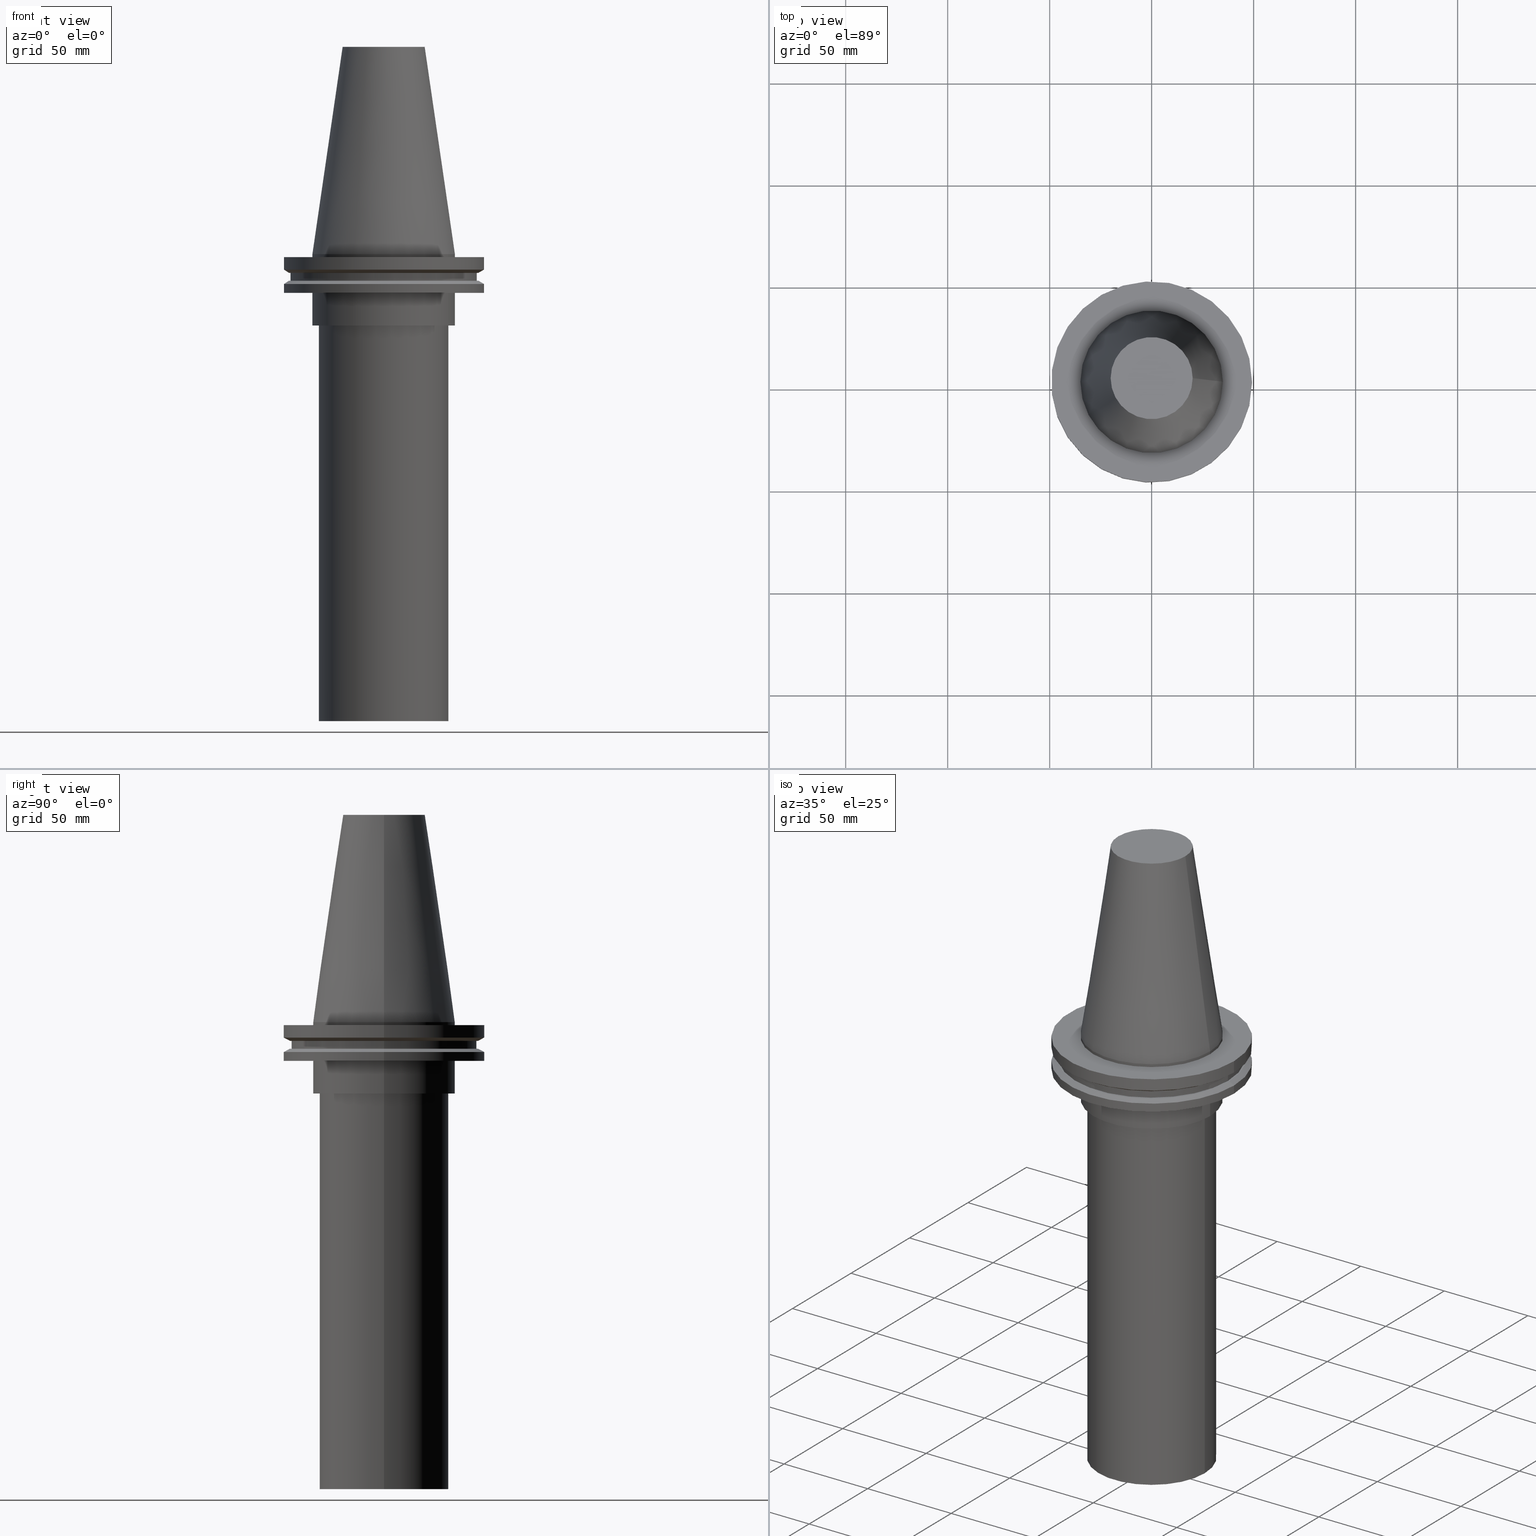
[diagram: canonical four-view strip — front | top / right | iso, engineering-drawing reading convention]
A machine part, canonical four-view strip (front | top / right | iso — engineering-drawing reading convention). The complete STEP part file that produces these views, byte-faithful:
ISO-10303-21;
HEADER;
FILE_DESCRIPTION (( 'STEP AP203' ),
    '1' );
FILE_NAME ('11.368.666.stp',
    '2022-03-09T15:22:44',
    ( '' ),
    ( '' ),
    'SwSTEP 2.0',
    'SolidWorks 2021',
    '' );
FILE_SCHEMA (( 'CONFIG_CONTROL_DESIGN' ));
ENDSEC;

DATA;
#1 = DIRECTION ( 'NONE',  ( 1.000000000000000000, 0.000000000000000000, 0.000000000000000000 ) ) ;
#2 = DIRECTION ( 'NONE',  ( 1.000000000000000000, 0.000000000000000000, 0.000000000000000000 ) ) ;
#3 = APPROVAL ( #111, 'UNSPECIFIED' ) ;
#4 = EDGE_LOOP ( 'NONE', ( #352 ) ) ;
#5 = CARTESIAN_POINT ( 'NONE',  ( 49.21499999999998920, 0.000000000000000000, -19.04999999999999716 ) ) ;
#6 = PRODUCT_DEFINITION_FORMATION_WITH_SPECIFIED_SOURCE ( 'ANY', '', #358, .NOT_KNOWN. ) ;
#7 = FACE_OUTER_BOUND ( 'NONE', #8, .T. ) ;
#8 = EDGE_LOOP ( 'NONE', ( #165 ) ) ;
#9 = DIRECTION ( 'NONE',  ( 1.000000000000000000, 0.000000000000000000, 0.000000000000000000 ) ) ;
#10 = PLANE ( 'NONE',  #322 ) ;
#11 = EDGE_CURVE ( 'NONE', #105, #105, #19, .T. ) ;
#12 = VERTEX_POINT ( 'NONE', #37 ) ;
#13 = FACE_OUTER_BOUND ( 'NONE', #227, .T. ) ;
#14 = CARTESIAN_POINT ( 'NONE',  ( 34.92499999999999005, 0.000000000000000000, 0.000000000000000000 ) ) ;
#15 = ORIENTED_EDGE ( 'NONE', *, *, #127, .T. ) ;
#16 = APPROVAL_DATE_TIME ( #299, #3 ) ;
#17 = DIRECTION ( 'NONE',  ( -0.000000000000000000, -0.000000000000000000, 1.000000000000000000 ) ) ;
#18 = PERSON_AND_ORGANIZATION_ROLE ( 'design_owner' ) ;
#19 = CIRCLE ( 'NONE', #369, 34.92499999999999716 ) ;
#20 = CALENDAR_DATE ( 2022, 9, 3 ) ;
#21 = CONICAL_SURFACE ( 'NONE', #244, 49.21499999999998920, 1.047197551196554333 ) ;
#22 = COORDINATED_UNIVERSAL_TIME_OFFSET ( 6, 0, .BEHIND. ) ;
#23 = ORIENTED_EDGE ( 'NONE', *, *, #32, .F. ) ;
#24 = AXIS2_PLACEMENT_3D ( 'NONE', #113, #234, #196 ) ;
#25 = DIRECTION ( 'NONE',  ( -0.000000000000000000, -0.000000000000000000, 1.000000000000000000 ) ) ;
#26 = FACE_OUTER_BOUND ( 'NONE', #384, .T. ) ;
#27 = AXIS2_PLACEMENT_3D ( 'NONE', #81, #291, #318 ) ;
#28 = FACE_OUTER_BOUND ( 'NONE', #228, .T. ) ;
#29 = FACE_OUTER_BOUND ( 'NONE', #278, .T. ) ;
#30 = AXIS2_PLACEMENT_3D ( 'NONE', #324, #233, #52 ) ;
#31 = ORIENTED_EDGE ( 'NONE', *, *, #123, .F. ) ;
#32 = EDGE_CURVE ( 'NONE', #223, #223, #97, .T. ) ;
#33 = CARTESIAN_POINT ( 'NONE',  ( 0.000000000000000000, 0.000000000000000000, 0.000000000000000000 ) ) ;
#34 = CYLINDRICAL_SURFACE ( 'NONE', #334, 34.92499999999999716 ) ;
#35 = ORIENTED_EDGE ( 'NONE', *, *, #104, .F. ) ;
#36 = CIRCLE ( 'NONE', #353, 46.43919780457007818 ) ;
#37 = CARTESIAN_POINT ( 'NONE',  ( 34.92499999999999005, 0.000000000000000000, -1.499999999999987566 ) ) ;
#38 = EDGE_LOOP ( 'NONE', ( #319 ) ) ;
#39 = DIRECTION ( 'NONE',  ( 0.000000000000000000, -0.000000000000000000, 1.000000000000000000 ) ) ;
#40 = ADVANCED_FACE ( 'NONE', ( #176, #290 ), #45, .F. ) ;
#41 = ORIENTED_EDGE ( 'NONE', *, *, #195, .F. ) ;
#42 = CARTESIAN_POINT ( 'NONE',  ( 45.64500000000000313, 0.000000000000000000, -9.204999999999991189 ) ) ;
#43 = EDGE_LOOP ( 'NONE', ( #161 ) ) ;
#44 = DIRECTION ( 'NONE',  ( -1.000000000000000000, 0.000000000000000000, 0.000000000000000000 ) ) ;
#45 = PLANE ( 'NONE',  #79 ) ;
#46 = APPROVAL_PERSON_ORGANIZATION ( #385, #210, #145 ) ;
#47 = DATE_AND_TIME ( #360, #284 ) ;
#48 = CARTESIAN_POINT ( 'NONE',  ( 0.000000000000000000, 0.000000000000000000, -19.04999999999999716 ) ) ;
#49 = CALENDAR_DATE ( 2022, 9, 3 ) ;
#50 = CARTESIAN_POINT ( 'NONE',  ( 31.75000000000000000, 0.000000000000000000, -35.00000000000000000 ) ) ;
#51 =( GEOMETRIC_REPRESENTATION_CONTEXT ( 3 ) GLOBAL_UNCERTAINTY_ASSIGNED_CONTEXT ( ( #348 ) ) GLOBAL_UNIT_ASSIGNED_CONTEXT ( ( #294, #357, #264 ) ) REPRESENTATION_CONTEXT ( 'NONE', 'WORKASPACE' ) );
#52 = DIRECTION ( 'NONE',  ( 1.000000000000000000, 0.000000000000000000, 0.000000000000000000 ) ) ;
#53 = ADVANCED_FACE ( 'NONE', ( #137 ), #10, .F. ) ;
#54 = AXIS2_PLACEMENT_3D ( 'NONE', #120, #393, #152 ) ;
#55 = PERSON_AND_ORGANIZATION ( #100, #154 ) ;
#56 = ORIENTED_EDGE ( 'NONE', *, *, #268, .F. ) ;
#57 = DIRECTION ( 'NONE',  ( 1.000000000000000000, 0.000000000000000000, 0.000000000000000000 ) ) ;
#58 = CIRCLE ( 'NONE', #226, 34.92499999999999005 ) ;
#59 = LOCAL_TIME ( 9, 22, 44.00000000000000000, #22 ) ;
#60 = CC_DESIGN_PERSON_AND_ORGANIZATION_ASSIGNMENT ( #90, #231, ( #201 ) ) ;
#61 = DIRECTION ( 'NONE',  ( -0.000000000000000000, -0.000000000000000000, 1.000000000000000000 ) ) ;
#62 = DIRECTION ( 'NONE',  ( 1.000000000000000000, 0.000000000000000000, 0.000000000000000000 ) ) ;
#63 = CARTESIAN_POINT ( 'NONE',  ( 0.000000000000000000, 0.000000000000000000, -229.0000000000000000 ) ) ;
#64 = ADVANCED_FACE ( 'NONE', ( #391 ), #106, .F. ) ;
#65 = EDGE_LOOP ( 'NONE', ( #217 ) ) ;
#66 = CIRCLE ( 'NONE', #308, 49.21499999999998920 ) ;
#67 = CARTESIAN_POINT ( 'NONE',  ( 0.000000000000000000, 0.000000000000000000, 0.000000000000000000 ) ) ;
#68 = APPROVAL_PERSON_ORGANIZATION ( #363, #327, #149 ) ;
#69 = EDGE_LOOP ( 'NONE', ( #122 ) ) ;
#70 = FACE_BOUND ( 'NONE', #76, .T. ) ;
#71 = CARTESIAN_POINT ( 'NONE',  ( 34.92499999999999716, 0.000000000000000000, -19.04999999999999716 ) ) ;
#72 = ORIENTED_EDGE ( 'NONE', *, *, #195, .T. ) ;
#73 = CIRCLE ( 'NONE', #255, 49.21499999999998920 ) ;
#74 = FACE_BOUND ( 'NONE', #317, .T. ) ;
#75 = PRODUCT_RELATED_PRODUCT_CATEGORY ( 'detail', '', ( #358 ) ) ;
#76 = EDGE_LOOP ( 'NONE', ( #331 ) ) ;
#77 = VERTEX_POINT ( 'NONE', #5 ) ;
#78 = AXIS2_PLACEMENT_3D ( 'NONE', #156, #282, #95 ) ;
#79 = AXIS2_PLACEMENT_3D ( 'NONE', #301, #163, #263 ) ;
#80 = CYLINDRICAL_SURFACE ( 'NONE', #24, 45.64500000000000313 ) ;
#81 = CARTESIAN_POINT ( 'NONE',  ( 0.000000000000000000, 34.92499999999999716, -35.00000000000000000 ) ) ;
#82 = CIRCLE ( 'NONE', #267, 49.21500000000000341 ) ;
#83 = DIRECTION ( 'NONE',  ( -0.000000000000000000, -0.000000000000000000, 1.000000000000000000 ) ) ;
#84 = CC_DESIGN_DATE_AND_TIME_ASSIGNMENT ( #47, #169, ( #201 ) ) ;
#85 = VERTEX_POINT ( 'NONE', #387 ) ;
#86 = EDGE_LOOP ( 'NONE', ( #245 ) ) ;
#87 = PERSON_AND_ORGANIZATION ( #100, #154 ) ;
#88 = ADVANCED_FACE ( 'NONE', ( #13, #386 ), #80, .T. ) ;
#89 = AXIS2_PLACEMENT_3D ( 'NONE', #382, #83, #323 ) ;
#90 = PERSON_AND_ORGANIZATION ( #100, #154 ) ;
#91 = ORIENTED_EDGE ( 'NONE', *, *, #216, .F. ) ;
#92 = CALENDAR_DATE ( 2022, 9, 3 ) ;
#93 = CARTESIAN_POINT ( 'NONE',  ( 0.000000000000000000, 31.75000000000000000, -229.0000000000000000 ) ) ;
#94 = ADVANCED_FACE ( 'NONE', ( #362, #134 ), #258, .T. ) ;
#95 = DIRECTION ( 'NONE',  ( 1.000000000000000000, 0.000000000000000000, 0.000000000000000000 ) ) ;
#96 = CARTESIAN_POINT ( 'NONE',  ( 0.000000000000000000, 0.000000000000000000, -9.204999999999991189 ) ) ;
#97 = CIRCLE ( 'NONE', #241, 34.92499999999999716 ) ;
#98 = CARTESIAN_POINT ( 'NONE',  ( 0.000000000000000000, 0.000000000000000000, 101.5999999999999943 ) ) ;
#99 = DIRECTION ( 'NONE',  ( 1.000000000000000000, 0.000000000000000000, 0.000000000000000000 ) ) ;
#100 = PERSON ( 'UNSPECIFIED', 'UNSPECIFIED', 'UNSPECIFIED', ('UNSPECIFIED'), ('UNSPECIFIED'), ('UNSPECIFIED') ) ;
#101 = FACE_BOUND ( 'NONE', #43, .T. ) ;
#102 = EDGE_LOOP ( 'NONE', ( #200 ) ) ;
#103 = VERTEX_POINT ( 'NONE', #109 ) ;
#104 = EDGE_CURVE ( 'NONE', #375, #375, #73, .T. ) ;
#105 = VERTEX_POINT ( 'NONE', #283 ) ;
#106 = PLANE ( 'NONE',  #112 ) ;
#107 = VERTEX_POINT ( 'NONE', #14 ) ;
#108 = EDGE_LOOP ( 'NONE', ( #206 ) ) ;
#109 = CARTESIAN_POINT ( 'NONE',  ( 45.64500000000000313, 0.000000000000000000, -13.05499999999999794 ) ) ;
#110 = EDGE_LOOP ( 'NONE', ( #168 ) ) ;
#111 = APPROVAL_STATUS ( 'not_yet_approved' ) ;
#112 = AXIS2_PLACEMENT_3D ( 'NONE', #93, #207, #130 ) ;
#113 = CARTESIAN_POINT ( 'NONE',  ( 0.000000000000000000, 0.000000000000000000, 101.5999999999999943 ) ) ;
#114 = CIRCLE ( 'NONE', #304, 49.21499999999999631 ) ;
#115 = CONICAL_SURFACE ( 'NONE', #144, 46.43919780457007818, 1.047197551196575205 ) ;
#116 = COORDINATED_UNIVERSAL_TIME_OFFSET ( 6, 0, .BEHIND. ) ;
#117 = CIRCLE ( 'NONE', #166, 20.10819343178871321 ) ;
#118 = EDGE_LOOP ( 'NONE', ( #31 ) ) ;
#119 = DIRECTION ( 'NONE',  ( 1.000000000000000000, 0.000000000000000000, 0.000000000000000000 ) ) ;
#120 = CARTESIAN_POINT ( 'NONE',  ( 0.000000000000000000, 0.000000000000000000, -13.05499999999999794 ) ) ;
#121 = FACE_BOUND ( 'NONE', #187, .T. ) ;
#122 = ORIENTED_EDGE ( 'NONE', *, *, #132, .T. ) ;
#123 = EDGE_CURVE ( 'NONE', #107, #107, #248, .T. ) ;
#124 = DIRECTION ( 'NONE',  ( 1.000000000000000000, 0.000000000000000000, 0.000000000000000000 ) ) ;
#125 = DIRECTION ( 'NONE',  ( 1.000000000000000000, 0.000000000000000000, 0.000000000000000000 ) ) ;
#126 = VERTEX_POINT ( 'NONE', #219 ) ;
#127 = EDGE_CURVE ( 'NONE', #103, #103, #345, .T. ) ;
#128 = CARTESIAN_POINT ( 'NONE',  ( 0.000000000000000000, 0.000000000000000000, -7.602389855251287187 ) ) ;
#129 = DIRECTION ( 'NONE',  ( -0.000000000000000000, -0.000000000000000000, 1.000000000000000000 ) ) ;
#130 = DIRECTION ( 'NONE',  ( 1.000000000000000000, 0.000000000000000000, 0.000000000000000000 ) ) ;
#131 = AXIS2_PLACEMENT_3D ( 'NONE', #238, #155, #392 ) ;
#132 = EDGE_CURVE ( 'NONE', #77, #77, #66, .T. ) ;
#133 = VERTEX_POINT ( 'NONE', #257 ) ;
#134 = FACE_OUTER_BOUND ( 'NONE', #213, .T. ) ;
#135 = PLANE ( 'NONE',  #343 ) ;
#136 = ORIENTED_EDGE ( 'NONE', *, *, #286, .F. ) ;
#137 = FACE_OUTER_BOUND ( 'NONE', #86, .T. ) ;
#138 = APPLICATION_PROTOCOL_DEFINITION ( 'international standard', 'config_control_design', 1994, #247 ) ;
#139 = CC_DESIGN_PERSON_AND_ORGANIZATION_ASSIGNMENT ( #87, #143, ( #6 ) ) ;
#140 = MECHANICAL_CONTEXT ( 'NONE', #232, 'mechanical' ) ;
#141 = AXIS2_PLACEMENT_3D ( 'NONE', #98, #312, #99 ) ;
#142 = CLOSED_SHELL ( 'NONE', ( #349, #53, #373, #388, #356, #146, #311, #297, #88, #243, #279, #237, #40, #94, #172, #64 ) ) ;
#143 = PERSON_AND_ORGANIZATION_ROLE ( 'creator' ) ;
#144 = AXIS2_PLACEMENT_3D ( 'NONE', #332, #61, #62 ) ;
#145 = APPROVAL_ROLE ( '' ) ;
#146 = ADVANCED_FACE ( 'NONE', ( #26, #277 ), #367, .T. ) ;
#147 = AXIS2_PLACEMENT_3D ( 'NONE', #63, #303, #124 ) ;
#148 = EDGE_LOOP ( 'NONE', ( #379 ) ) ;
#149 = APPROVAL_ROLE ( '' ) ;
#150 = DIRECTION ( 'NONE',  ( 1.000000000000000000, 0.000000000000000000, 0.000000000000000000 ) ) ;
#151 = DIRECTION ( 'NONE',  ( -0.000000000000000000, -0.000000000000000000, 1.000000000000000000 ) ) ;
#152 = DIRECTION ( 'NONE',  ( 1.000000000000000000, 0.000000000000000000, 0.000000000000000000 ) ) ;
#153 = EDGE_CURVE ( 'NONE', #126, #126, #117, .T. ) ;
#154 = ORGANIZATION ( 'UNSPECIFIED', 'UNSPECIFIED', '' ) ;
#155 = DIRECTION ( 'NONE',  ( -0.000000000000000000, -0.000000000000000000, 1.000000000000000000 ) ) ;
#156 = CARTESIAN_POINT ( 'NONE',  ( 0.000000000000000000, 46.43919780457007818, -9.204999999999998295 ) ) ;
#157 = DIRECTION ( 'NONE',  ( 0.000000000000000000, 0.000000000000000000, -1.000000000000000000 ) ) ;
#158 = EDGE_CURVE ( 'NONE', #188, #188, #215, .T. ) ;
#159 = AXIS2_PLACEMENT_3D ( 'NONE', #33, #25, #57 ) ;
#160 = VERTEX_POINT ( 'NONE', #42 ) ;
#161 = ORIENTED_EDGE ( 'NONE', *, *, #216, .T. ) ;
#162 = DESIGN_CONTEXT ( 'detailed design', #247, 'design' ) ;
#163 = DIRECTION ( 'NONE',  ( 0.000000000000000000, 0.000000000000000000, -1.000000000000000000 ) ) ;
#164 = FACE_OUTER_BOUND ( 'NONE', #110, .T. ) ;
#165 = ORIENTED_EDGE ( 'NONE', *, *, #11, .T. ) ;
#166 = AXIS2_PLACEMENT_3D ( 'NONE', #208, #336, #2 ) ;
#167 = PLANE ( 'NONE',  #27 ) ;
#168 = ORIENTED_EDGE ( 'NONE', *, *, #132, .F. ) ;
#169 = DATE_TIME_ROLE ( 'creation_date' ) ;
#170 = DIRECTION ( 'NONE',  ( 1.000000000000000000, 0.000000000000000000, 0.000000000000000000 ) ) ;
#171 = DATE_TIME_ROLE ( 'classification_date' ) ;
#172 = ADVANCED_FACE ( 'NONE', ( #218, #211 ), #178, .T. ) ;
#173 = VERTEX_POINT ( 'NONE', #50 ) ;
#174 = APPROVAL_ROLE ( '' ) ;
#175 = EDGE_CURVE ( 'NONE', #315, #315, #36, .T. ) ;
#176 = FACE_BOUND ( 'NONE', #354, .T. ) ;
#177 = AXIS2_PLACEMENT_3D ( 'NONE', #67, #371, #150 ) ;
#178 = CYLINDRICAL_SURFACE ( 'NONE', #177, 31.75000000000000000 ) ;
#179 = DIRECTION ( 'NONE',  ( -0.000000000000000000, -0.000000000000000000, 1.000000000000000000 ) ) ;
#180 = DIRECTION ( 'NONE',  ( -0.000000000000000000, -0.000000000000000000, 1.000000000000000000 ) ) ;
#181 = DIRECTION ( 'NONE',  ( 1.000000000000000000, 0.000000000000000000, 0.000000000000000000 ) ) ;
#182 = APPROVAL_STATUS ( 'not_yet_approved' ) ;
#183 = FACE_OUTER_BOUND ( 'NONE', #38, .T. ) ;
#184 = ORIENTED_EDGE ( 'NONE', *, *, #268, .T. ) ;
#185 = CC_DESIGN_DATE_AND_TIME_ASSIGNMENT ( #269, #171, ( #271 ) ) ;
#186 = FACE_BOUND ( 'NONE', #287, .T. ) ;
#187 = EDGE_LOOP ( 'NONE', ( #346 ) ) ;
#188 = VERTEX_POINT ( 'NONE', #342 ) ;
#189 = AXIS2_PLACEMENT_3D ( 'NONE', #240, #179, #307 ) ;
#190 = ORIENTED_EDGE ( 'NONE', *, *, #153, .F. ) ;
#191 = DIRECTION ( 'NONE',  ( -1.000000000000000000, 0.000000000000000000, -0.000000000000000000 ) ) ;
#192 = EDGE_LOOP ( 'NONE', ( #190 ) ) ;
#193 = CIRCLE ( 'NONE', #281, 45.64500000000000313 ) ;
#194 = CARTESIAN_POINT ( 'NONE',  ( 0.000000000000000000, 0.000000000000000000, 0.000000000000000000 ) ) ;
#195 = EDGE_CURVE ( 'NONE', #12, #12, #58, .T. ) ;
#196 = DIRECTION ( 'NONE',  ( 1.000000000000000000, 0.000000000000000000, 0.000000000000000000 ) ) ;
#197 = FACE_OUTER_BOUND ( 'NONE', #102, .T. ) ;
#198 = EDGE_LOOP ( 'NONE', ( #252 ) ) ;
#199 = DATE_AND_TIME ( #203, #380 ) ;
#200 = ORIENTED_EDGE ( 'NONE', *, *, #11, .F. ) ;
#201 = PRODUCT_DEFINITION ( 'UNKNOWN', '', #6, #162 ) ;
#202 = PERSON_AND_ORGANIZATION_ROLE ( 'design_supplier' ) ;
#203 = CALENDAR_DATE ( 2022, 9, 3 ) ;
#204 = PRODUCT_DEFINITION_SHAPE ( 'NONE', 'NONE',  #201 ) ;
#205 = PERSON_AND_ORGANIZATION ( #100, #154 ) ;
#206 = ORIENTED_EDGE ( 'NONE', *, *, #320, .F. ) ;
#207 = DIRECTION ( 'NONE',  ( 0.000000000000000000, -0.000000000000000000, 1.000000000000000000 ) ) ;
#208 = CARTESIAN_POINT ( 'NONE',  ( 0.000000000000000000, 0.000000000000000000, 101.5999999999999801 ) ) ;
#209 = COORDINATED_UNIVERSAL_TIME_OFFSET ( 6, 0, .BEHIND. ) ;
#210 = APPROVAL ( #355, 'UNSPECIFIED' ) ;
#211 = FACE_OUTER_BOUND ( 'NONE', #198, .T. ) ;
#212 = FACE_BOUND ( 'NONE', #261, .T. ) ;
#213 = EDGE_LOOP ( 'NONE', ( #72 ) ) ;
#214 = PLANE ( 'NONE',  #78 ) ;
#215 = CIRCLE ( 'NONE', #147, 31.75000000000000000 ) ;
#216 = EDGE_CURVE ( 'NONE', #160, #160, #193, .T. ) ;
#217 = ORIENTED_EDGE ( 'NONE', *, *, #394, .T. ) ;
#218 = FACE_OUTER_BOUND ( 'NONE', #337, .T. ) ;
#219 = CARTESIAN_POINT ( 'NONE',  ( 20.10819343178871321, 0.000000000000000000, 101.5999999999999801 ) ) ;
#220 = ORIENTED_EDGE ( 'NONE', *, *, #286, .T. ) ;
#221 = CONICAL_SURFACE ( 'NONE', #326, 34.92499999999999005, 0.1448138465474119452 ) ;
#222 = DIRECTION ( 'NONE',  ( -0.000000000000000000, -0.000000000000000000, 1.000000000000000000 ) ) ;
#223 = VERTEX_POINT ( 'NONE', #71 ) ;
#224 = ORIENTED_EDGE ( 'NONE', *, *, #123, .T. ) ;
#225 = FACE_BOUND ( 'NONE', #192, .T. ) ;
#226 = AXIS2_PLACEMENT_3D ( 'NONE', #236, #242, #125 ) ;
#227 = EDGE_LOOP ( 'NONE', ( #91 ) ) ;
#228 = EDGE_LOOP ( 'NONE', ( #310 ) ) ;
#229 = COORDINATED_UNIVERSAL_TIME_OFFSET ( 6, 0, .BEHIND. ) ;
#230 = CARTESIAN_POINT ( 'NONE',  ( 49.21500000000000341, 0.000000000000000000, -7.602389855251287187 ) ) ;
#231 = PERSON_AND_ORGANIZATION_ROLE ( 'creator' ) ;
#232 = APPLICATION_CONTEXT ( 'configuration controlled 3d designs of mechanical parts and assemblies' ) ;
#233 = DIRECTION ( 'NONE',  ( 0.000000000000000000, 0.000000000000000000, 1.000000000000000000 ) ) ;
#234 = DIRECTION ( 'NONE',  ( -0.000000000000000000, -0.000000000000000000, 1.000000000000000000 ) ) ;
#235 = DIRECTION ( 'NONE',  ( 1.000000000000000000, 0.000000000000000000, 0.000000000000000000 ) ) ;
#236 = CARTESIAN_POINT ( 'NONE',  ( 0.000000000000000000, 0.000000000000000000, -1.499999999999987566 ) ) ;
#237 = ADVANCED_FACE ( 'NONE', ( #183, #28 ), #365, .T. ) ;
#238 = CARTESIAN_POINT ( 'NONE',  ( 0.000000000000000000, 0.000000000000000000, -13.05499999999999794 ) ) ;
#239 = LOCAL_TIME ( 9, 22, 44.00000000000000000, #229 ) ;
#240 = CARTESIAN_POINT ( 'NONE',  ( 0.000000000000000000, 0.000000000000000000, -35.00000000000000000 ) ) ;
#241 = AXIS2_PLACEMENT_3D ( 'NONE', #48, #17, #170 ) ;
#242 = DIRECTION ( 'NONE',  ( -0.000000000000000000, -0.000000000000000000, 1.000000000000000000 ) ) ;
#243 = ADVANCED_FACE ( 'NONE', ( #275, #101 ), #214, .F. ) ;
#244 = AXIS2_PLACEMENT_3D ( 'NONE', #383, #347, #44 ) ;
#245 = ORIENTED_EDGE ( 'NONE', *, *, #153, .T. ) ;
#246 = FACE_OUTER_BOUND ( 'NONE', #108, .T. ) ;
#247 = APPLICATION_CONTEXT ( 'configuration controlled 3d designs of mechanical parts and assemblies' ) ;
#248 = CIRCLE ( 'NONE', #159, 34.92499999999999005 ) ;
#249 = CARTESIAN_POINT ( 'NONE',  ( 0.000000000000000000, 49.21499999999998920, -19.04999999999999716 ) ) ;
#250 = EDGE_LOOP ( 'NONE', ( #374 ) ) ;
#251 = DIRECTION ( 'NONE',  ( 1.000000000000000000, 0.000000000000000000, 0.000000000000000000 ) ) ;
#252 = ORIENTED_EDGE ( 'NONE', *, *, #158, .T. ) ;
#253 = DIRECTION ( 'NONE',  ( 1.000000000000000000, 0.000000000000000000, 0.000000000000000000 ) ) ;
#254 = DIRECTION ( 'NONE',  ( -1.000000000000000000, 0.000000000000000000, -0.000000000000000000 ) ) ;
#255 = AXIS2_PLACEMENT_3D ( 'NONE', #370, #309, #273 ) ;
#256 = CC_DESIGN_APPROVAL ( #3, ( #6 ) ) ;
#257 = CARTESIAN_POINT ( 'NONE',  ( 46.43919780457007818, 0.000000000000000000, -13.05499999999999794 ) ) ;
#258 = CYLINDRICAL_SURFACE ( 'NONE', #89, 34.92499999999999005 ) ;
#259 = FACE_OUTER_BOUND ( 'NONE', #330, .T. ) ;
#260 = CC_DESIGN_PERSON_AND_ORGANIZATION_ASSIGNMENT ( #205, #202, ( #6 ) ) ;
#261 = EDGE_LOOP ( 'NONE', ( #340 ) ) ;
#262 = APPLICATION_PROTOCOL_DEFINITION ( 'international standard', 'config_control_design', 1994, #232 ) ;
#263 = DIRECTION ( 'NONE',  ( -1.000000000000000000, 0.000000000000000000, -0.000000000000000000 ) ) ;
#264 =( NAMED_UNIT ( * ) SI_UNIT ( $, .STERADIAN. ) SOLID_ANGLE_UNIT ( ) );
#265 = CC_DESIGN_SECURITY_CLASSIFICATION ( #271, ( #6 ) ) ;
#266 = MANIFOLD_SOLID_BREP ( 'CKB', #142 ) ;
#267 = AXIS2_PLACEMENT_3D ( 'NONE', #128, #129, #381 ) ;
#268 = EDGE_CURVE ( 'NONE', #133, #133, #298, .T. ) ;
#269 = DATE_AND_TIME ( #49, #59 ) ;
#270 = CARTESIAN_POINT ( 'NONE',  ( 0.000000000000000000, 20.10819343178871321, 101.5999999999999943 ) ) ;
#271 = SECURITY_CLASSIFICATION ( '', '', #329 ) ;
#272 = DATE_AND_TIME ( #92, #368 ) ;
#273 = DIRECTION ( 'NONE',  ( 1.000000000000000000, 0.000000000000000000, 0.000000000000000000 ) ) ;
#274 = CC_DESIGN_PERSON_AND_ORGANIZATION_ASSIGNMENT ( #295, #18, ( #358 ) ) ;
#275 = FACE_OUTER_BOUND ( 'NONE', #250, .T. ) ;
#276 = AXIS2_PLACEMENT_3D ( 'NONE', #314, #341, #191 ) ;
#277 = FACE_OUTER_BOUND ( 'NONE', #69, .T. ) ;
#278 = EDGE_LOOP ( 'NONE', ( #184 ) ) ;
#279 = ADVANCED_FACE ( 'NONE', ( #246, #121 ), #115, .T. ) ;
#280 = DIRECTION ( 'NONE',  ( -0.000000000000000000, -0.000000000000000000, 1.000000000000000000 ) ) ;
#281 = AXIS2_PLACEMENT_3D ( 'NONE', #96, #335, #181 ) ;
#282 = DIRECTION ( 'NONE',  ( 0.000000000000000000, -0.000000000000000000, 1.000000000000000000 ) ) ;
#283 = CARTESIAN_POINT ( 'NONE',  ( 34.92499999999999716, 0.000000000000000000, -35.00000000000000000 ) ) ;
#284 = LOCAL_TIME ( 9, 22, 44.00000000000000000, #116 ) ;
#285 = CARTESIAN_POINT ( 'NONE',  ( 49.21499999999998920, 0.000000000000000000, -14.65761014474876944 ) ) ;
#286 = EDGE_CURVE ( 'NONE', #173, #173, #389, .T. ) ;
#287 = EDGE_LOOP ( 'NONE', ( #220 ) ) ;
#288 = DIRECTION ( 'NONE',  ( -0.000000000000000000, -0.000000000000000000, 1.000000000000000000 ) ) ;
#289 = CARTESIAN_POINT ( 'NONE',  ( 46.43919780457007818, 0.000000000000000000, -9.204999999999991189 ) ) ;
#290 = FACE_OUTER_BOUND ( 'NONE', #65, .T. ) ;
#291 = DIRECTION ( 'NONE',  ( 0.000000000000000000, -0.000000000000000000, 1.000000000000000000 ) ) ;
#292 = EDGE_LOOP ( 'NONE', ( #15 ) ) ;
#293 = CARTESIAN_POINT ( 'NONE',  ( 0.000000000000000000, 0.000000000000000000, -35.00000000000000000 ) ) ;
#294 =( LENGTH_UNIT ( ) NAMED_UNIT ( * ) SI_UNIT ( .MILLI., .METRE. ) );
#295 = PERSON_AND_ORGANIZATION ( #100, #154 ) ;
#296 = APPROVAL_PERSON_ORGANIZATION ( #359, #3, #174 ) ;
#297 = ADVANCED_FACE ( 'NONE', ( #212, #29 ), #321, .F. ) ;
#298 = CIRCLE ( 'NONE', #54, 46.43919780457007818 ) ;
#299 = DATE_AND_TIME ( #20, #239 ) ;
#300 = APPROVAL_DATE_TIME ( #199, #210 ) ;
#301 = CARTESIAN_POINT ( 'NONE',  ( 0.000000000000000000, 49.21499999999999631, -1.499999999999992895 ) ) ;
#302 = CC_DESIGN_PERSON_AND_ORGANIZATION_ASSIGNMENT ( #55, #325, ( #271 ) ) ;
#303 = DIRECTION ( 'NONE',  ( -0.000000000000000000, -0.000000000000000000, 1.000000000000000000 ) ) ;
#304 = AXIS2_PLACEMENT_3D ( 'NONE', #377, #222, #253 ) ;
#305 = SHAPE_DEFINITION_REPRESENTATION ( #204, #376 ) ;
#306 = CARTESIAN_POINT ( 'NONE',  ( 0.000000000000000000, 0.000000000000000000, -19.04999999999999716 ) ) ;
#307 = DIRECTION ( 'NONE',  ( 1.000000000000000000, 0.000000000000000000, 0.000000000000000000 ) ) ;
#308 = AXIS2_PLACEMENT_3D ( 'NONE', #306, #180, #1 ) ;
#309 = DIRECTION ( 'NONE',  ( -0.000000000000000000, -0.000000000000000000, 1.000000000000000000 ) ) ;
#310 = ORIENTED_EDGE ( 'NONE', *, *, #320, .T. ) ;
#311 = ADVANCED_FACE ( 'NONE', ( #74, #316 ), #21, .T. ) ;
#312 = DIRECTION ( 'NONE',  ( -0.000000000000000000, -0.000000000000000000, 1.000000000000000000 ) ) ;
#313 = EDGE_LOOP ( 'NONE', ( #224 ) ) ;
#314 = CARTESIAN_POINT ( 'NONE',  ( 0.000000000000000000, 45.64500000000000313, -13.05499999999999794 ) ) ;
#315 = VERTEX_POINT ( 'NONE', #289 ) ;
#316 = FACE_OUTER_BOUND ( 'NONE', #4, .T. ) ;
#317 = EDGE_LOOP ( 'NONE', ( #56 ) ) ;
#318 = DIRECTION ( 'NONE',  ( 1.000000000000000000, 0.000000000000000000, 0.000000000000000000 ) ) ;
#319 = ORIENTED_EDGE ( 'NONE', *, *, #394, .F. ) ;
#320 = EDGE_CURVE ( 'NONE', #390, #390, #82, .T. ) ;
#321 = PLANE ( 'NONE',  #276 ) ;
#322 = AXIS2_PLACEMENT_3D ( 'NONE', #270, #364, #254 ) ;
#323 = DIRECTION ( 'NONE',  ( 1.000000000000000000, 0.000000000000000000, 0.000000000000000000 ) ) ;
#324 = CARTESIAN_POINT ( 'NONE',  ( 0.000000000000000000, 0.000000000000000000, 0.000000000000000000 ) ) ;
#325 = PERSON_AND_ORGANIZATION_ROLE ( 'classification_officer' ) ;
#326 = AXIS2_PLACEMENT_3D ( 'NONE', #194, #157, #378 ) ;
#327 = APPROVAL ( #182, 'UNSPECIFIED' ) ;
#328 = COORDINATED_UNIVERSAL_TIME_OFFSET ( 6, 0, .BEHIND. ) ;
#329 = SECURITY_CLASSIFICATION_LEVEL ( 'unclassified' ) ;
#330 = EDGE_LOOP ( 'NONE', ( #23 ) ) ;
#331 = ORIENTED_EDGE ( 'NONE', *, *, #32, .T. ) ;
#332 = CARTESIAN_POINT ( 'NONE',  ( 0.000000000000000000, 0.000000000000000000, -9.204999999999991189 ) ) ;
#333 = CC_DESIGN_APPROVAL ( #327, ( #271 ) ) ;
#334 = AXIS2_PLACEMENT_3D ( 'NONE', #344, #288, #9 ) ;
#335 = DIRECTION ( 'NONE',  ( -0.000000000000000000, -0.000000000000000000, 1.000000000000000000 ) ) ;
#336 = DIRECTION ( 'NONE',  ( -0.000000000000000000, -0.000000000000000000, 1.000000000000000000 ) ) ;
#337 = EDGE_LOOP ( 'NONE', ( #136 ) ) ;
#338 = AXIS2_PLACEMENT_3D ( 'NONE', #395, #280, #339 ) ;
#339 = DIRECTION ( 'NONE',  ( 1.000000000000000000, 0.000000000000000000, 0.000000000000000000 ) ) ;
#340 = ORIENTED_EDGE ( 'NONE', *, *, #127, .F. ) ;
#341 = DIRECTION ( 'NONE',  ( 0.000000000000000000, 0.000000000000000000, -1.000000000000000000 ) ) ;
#342 = CARTESIAN_POINT ( 'NONE',  ( 31.75000000000000000, 0.000000000000000000, -229.0000000000000000 ) ) ;
#343 = AXIS2_PLACEMENT_3D ( 'NONE', #249, #39, #251 ) ;
#344 = CARTESIAN_POINT ( 'NONE',  ( 0.000000000000000000, 0.000000000000000000, 101.5999999999999943 ) ) ;
#345 = CIRCLE ( 'NONE', #131, 45.64500000000000313 ) ;
#346 = ORIENTED_EDGE ( 'NONE', *, *, #175, .T. ) ;
#347 = DIRECTION ( 'NONE',  ( 0.000000000000000000, 0.000000000000000000, -1.000000000000000000 ) ) ;
#348 = UNCERTAINTY_MEASURE_WITH_UNIT (LENGTH_MEASURE( 1.000000000000000082E-05 ), #294, 'distance_accuracy_value', 'NONE');
#349 = ADVANCED_FACE ( 'NONE', ( #225, #351 ), #221, .T. ) ;
#350 = DIRECTION ( 'NONE',  ( -0.000000000000000000, -0.000000000000000000, 1.000000000000000000 ) ) ;
#351 = FACE_OUTER_BOUND ( 'NONE', #313, .T. ) ;
#352 = ORIENTED_EDGE ( 'NONE', *, *, #104, .T. ) ;
#353 = AXIS2_PLACEMENT_3D ( 'NONE', #372, #151, #119 ) ;
#354 = EDGE_LOOP ( 'NONE', ( #41 ) ) ;
#355 = APPROVAL_STATUS ( 'not_yet_approved' ) ;
#356 = ADVANCED_FACE ( 'NONE', ( #164, #70 ), #135, .F. ) ;
#357 =( NAMED_UNIT ( * ) PLANE_ANGLE_UNIT ( ) SI_UNIT ( $, .RADIAN. ) );
#358 = PRODUCT ( '11.368.666', '11.368.666', '', ( #140 ) ) ;
#359 = PERSON_AND_ORGANIZATION ( #100, #154 ) ;
#360 = CALENDAR_DATE ( 2022, 9, 3 ) ;
#361 = CC_DESIGN_APPROVAL ( #210, ( #201 ) ) ;
#362 = FACE_OUTER_BOUND ( 'NONE', #118, .T. ) ;
#363 = PERSON_AND_ORGANIZATION ( #100, #154 ) ;
#364 = DIRECTION ( 'NONE',  ( 0.000000000000000000, 0.000000000000000000, -1.000000000000000000 ) ) ;
#365 = CYLINDRICAL_SURFACE ( 'NONE', #141, 49.21499999999999631 ) ;
#366 = APPROVAL_DATE_TIME ( #272, #327 ) ;
#367 = CYLINDRICAL_SURFACE ( 'NONE', #338, 49.21499999999998920 ) ;
#368 = LOCAL_TIME ( 9, 22, 44.00000000000000000, #209 ) ;
#369 = AXIS2_PLACEMENT_3D ( 'NONE', #293, #350, #235 ) ;
#370 = CARTESIAN_POINT ( 'NONE',  ( 0.000000000000000000, 0.000000000000000000, -14.65761014474876944 ) ) ;
#371 = DIRECTION ( 'NONE',  ( -0.000000000000000000, -0.000000000000000000, 1.000000000000000000 ) ) ;
#372 = CARTESIAN_POINT ( 'NONE',  ( 0.000000000000000000, 0.000000000000000000, -9.204999999999991189 ) ) ;
#373 = ADVANCED_FACE ( 'NONE', ( #186, #197 ), #167, .F. ) ;
#374 = ORIENTED_EDGE ( 'NONE', *, *, #175, .F. ) ;
#375 = VERTEX_POINT ( 'NONE', #285 ) ;
#376 = ADVANCED_BREP_SHAPE_REPRESENTATION ( '11.368.666', ( #266, #30 ), #51 ) ;
#377 = CARTESIAN_POINT ( 'NONE',  ( 0.000000000000000000, 0.000000000000000000, -1.499999999999987566 ) ) ;
#378 = DIRECTION ( 'NONE',  ( -1.000000000000000000, 0.000000000000000000, 0.000000000000000000 ) ) ;
#379 = ORIENTED_EDGE ( 'NONE', *, *, #158, .F. ) ;
#380 = LOCAL_TIME ( 9, 22, 44.00000000000000000, #328 ) ;
#381 = DIRECTION ( 'NONE',  ( 1.000000000000000000, 0.000000000000000000, 0.000000000000000000 ) ) ;
#382 = CARTESIAN_POINT ( 'NONE',  ( 0.000000000000000000, 0.000000000000000000, 101.5999999999999943 ) ) ;
#383 = CARTESIAN_POINT ( 'NONE',  ( 0.000000000000000000, 0.000000000000000000, -14.65761014474876944 ) ) ;
#384 = EDGE_LOOP ( 'NONE', ( #35 ) ) ;
#385 = PERSON_AND_ORGANIZATION ( #100, #154 ) ;
#386 = FACE_OUTER_BOUND ( 'NONE', #292, .T. ) ;
#387 = CARTESIAN_POINT ( 'NONE',  ( 49.21499999999999631, 0.000000000000000000, -1.499999999999987566 ) ) ;
#388 = ADVANCED_FACE ( 'NONE', ( #259, #7 ), #34, .T. ) ;
#389 = CIRCLE ( 'NONE', #189, 31.75000000000000000 ) ;
#390 = VERTEX_POINT ( 'NONE', #230 ) ;
#391 = FACE_OUTER_BOUND ( 'NONE', #148, .T. ) ;
#392 = DIRECTION ( 'NONE',  ( 1.000000000000000000, 0.000000000000000000, 0.000000000000000000 ) ) ;
#393 = DIRECTION ( 'NONE',  ( -0.000000000000000000, -0.000000000000000000, 1.000000000000000000 ) ) ;
#394 = EDGE_CURVE ( 'NONE', #85, #85, #114, .T. ) ;
#395 = CARTESIAN_POINT ( 'NONE',  ( 0.000000000000000000, 0.000000000000000000, 101.5999999999999943 ) ) ;
ENDSEC;
END-ISO-10303-21;
